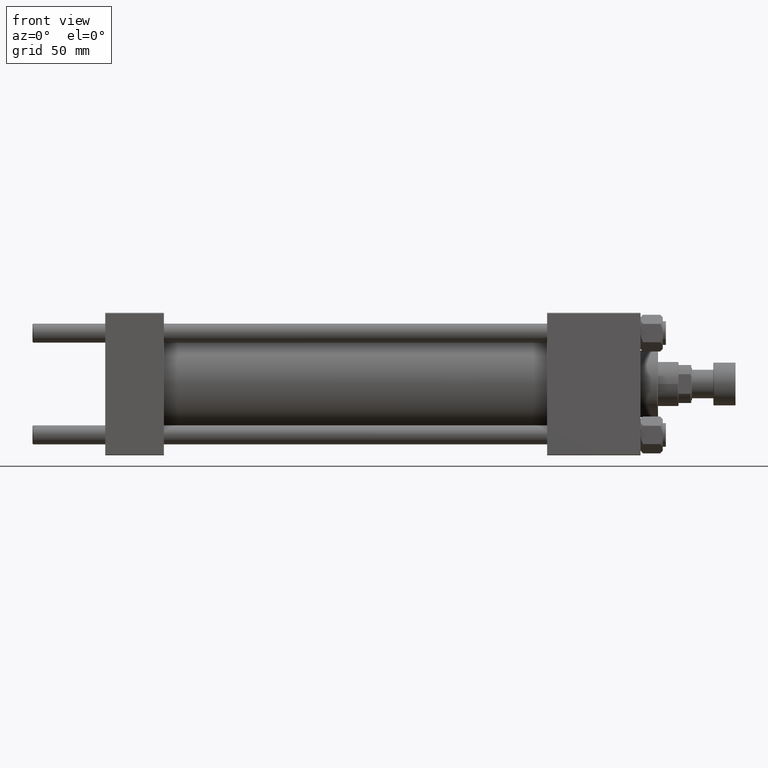
[diagram: clean part render]
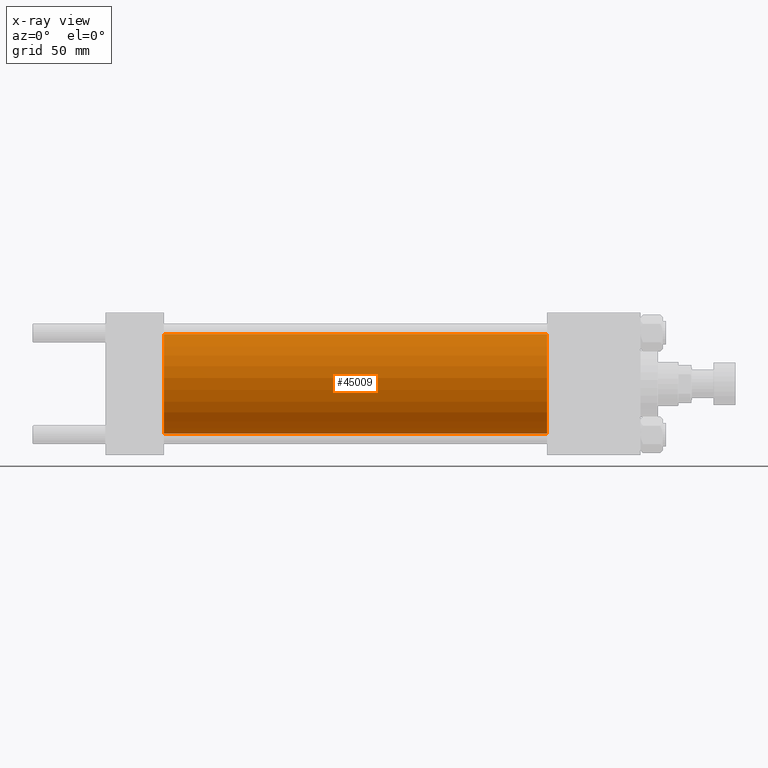
[diagram: x-ray — body ghosted, one internal face saturated and labeled with its STEP entity id]
A machine part, front view, then the same camera in x-ray: the body is ghosted and one INTERNAL B-rep face — a face not visible from any outside direction — is saturated and labeled: STEP entity #45009.
In plain terms, the highlighted cylindrical surface (partial cylindrical patch) has radius 31.5 mm, axis along (-1, -0, -0).
Its self-contained STEP definition (entity closure, byte-faithful):
#180 = DIRECTION ( 'NONE',  ( -1.000000000000000000, -0.000000000000000000, -0.000000000000000000 ) ) ;
#429 = CARTESIAN_POINT ( 'NONE',  ( 278.9999999999999432, 0.000000000000000000, 0.000000000000000000 ) ) ;
#598 = EDGE_LOOP ( 'NONE', ( #3176, #13082, #21039, #48109 ) ) ;
#3176 = ORIENTED_EDGE ( 'NONE', *, *, #47824, .T. ) ;
#3335 = DIRECTION ( 'NONE',  ( -1.000000000000000000, -0.000000000000000000, -0.000000000000000000 ) ) ;
#6610 = VERTEX_POINT ( 'NONE', #40675 ) ;
#9141 = VERTEX_POINT ( 'NONE', #26254 ) ;
#10775 = CARTESIAN_POINT ( 'NONE',  ( 278.9999999999999432, 0.000000000000000000, 0.000000000000000000 ) ) ;
#11445 = CARTESIAN_POINT ( 'NONE',  ( 278.9999999999999432, 3.857637417314162689E-15, -31.50000000000000000 ) ) ;
#11841 = FACE_OUTER_BOUND ( 'NONE', #598, .T. ) ;
#13082 = ORIENTED_EDGE ( 'NONE', *, *, #25828, .T. ) ;
#17864 = VECTOR ( 'NONE', #35919, 1000.000000000000000 ) ;
#18291 = CIRCLE ( 'NONE', #39414, 31.50000000000000000 ) ;
#19462 = CYLINDRICAL_SURFACE ( 'NONE', #41850, 31.50000000000000000 ) ;
#20422 = CARTESIAN_POINT ( 'NONE',  ( 278.9999999999999432, 0.000000000000000000, 31.50000000000000000 ) ) ;
#21039 = ORIENTED_EDGE ( 'NONE', *, *, #48099, .F. ) ;
#21219 = DIRECTION ( 'NONE',  ( 1.000000000000000000, 0.000000000000000000, 0.000000000000000000 ) ) ;
#21893 = DIRECTION ( 'NONE',  ( 0.000000000000000000, 0.000000000000000000, -1.000000000000000000 ) ) ;
#25828 = EDGE_CURVE ( 'NONE', #9141, #47933, #26959, .T. ) ;
#26254 = CARTESIAN_POINT ( 'NONE',  ( 278.9999999999999432, 3.857637417314162689E-15, -31.50000000000000000 ) ) ;
#26480 = CARTESIAN_POINT ( 'NONE',  ( 278.9999999999999432, 0.000000000000000000, 31.50000000000000000 ) ) ;
#26959 = LINE ( 'NONE', #11445, #39728 ) ;
#30994 = EDGE_CURVE ( 'NONE', #32211, #6610, #47374, .T. ) ;
#32211 = VERTEX_POINT ( 'NONE', #26480 ) ;
#35919 = DIRECTION ( 'NONE',  ( -1.000000000000000000, -0.000000000000000000, -0.000000000000000000 ) ) ;
#36962 = DIRECTION ( 'NONE',  ( 0.000000000000000000, 0.000000000000000000, -1.000000000000000000 ) ) ;
#38588 = AXIS2_PLACEMENT_3D ( 'NONE', #45035, #49101, #21893 ) ;
#39414 = AXIS2_PLACEMENT_3D ( 'NONE', #10775, #21219, #36962 ) ;
#39728 = VECTOR ( 'NONE', #3335, 1000.000000000000000 ) ;
#40675 = CARTESIAN_POINT ( 'NONE',  ( 37.00000000000000000, 0.000000000000000000, 31.50000000000000000 ) ) ;
#41850 = AXIS2_PLACEMENT_3D ( 'NONE', #429, #180, #46684 ) ;
#42025 = CARTESIAN_POINT ( 'NONE',  ( 37.00000000000000000, 3.857637417314162689E-15, -31.50000000000000000 ) ) ;
#45009 = ADVANCED_FACE ( 'NONE', ( #11841 ), #19462, .F. ) ;
#45035 = CARTESIAN_POINT ( 'NONE',  ( 37.00000000000000000, 0.000000000000000000, 0.000000000000000000 ) ) ;
#45914 = CIRCLE ( 'NONE', #38588, 31.50000000000000000 ) ;
#46684 = DIRECTION ( 'NONE',  ( 0.000000000000000000, 0.000000000000000000, 1.000000000000000000 ) ) ;
#47374 = LINE ( 'NONE', #20422, #17864 ) ;
#47824 = EDGE_CURVE ( 'NONE', #32211, #9141, #18291, .T. ) ;
#47933 = VERTEX_POINT ( 'NONE', #42025 ) ;
#48099 = EDGE_CURVE ( 'NONE', #6610, #47933, #45914, .T. ) ;
#48109 = ORIENTED_EDGE ( 'NONE', *, *, #30994, .F. ) ;
#49101 = DIRECTION ( 'NONE',  ( 1.000000000000000000, 0.000000000000000000, 0.000000000000000000 ) ) ;